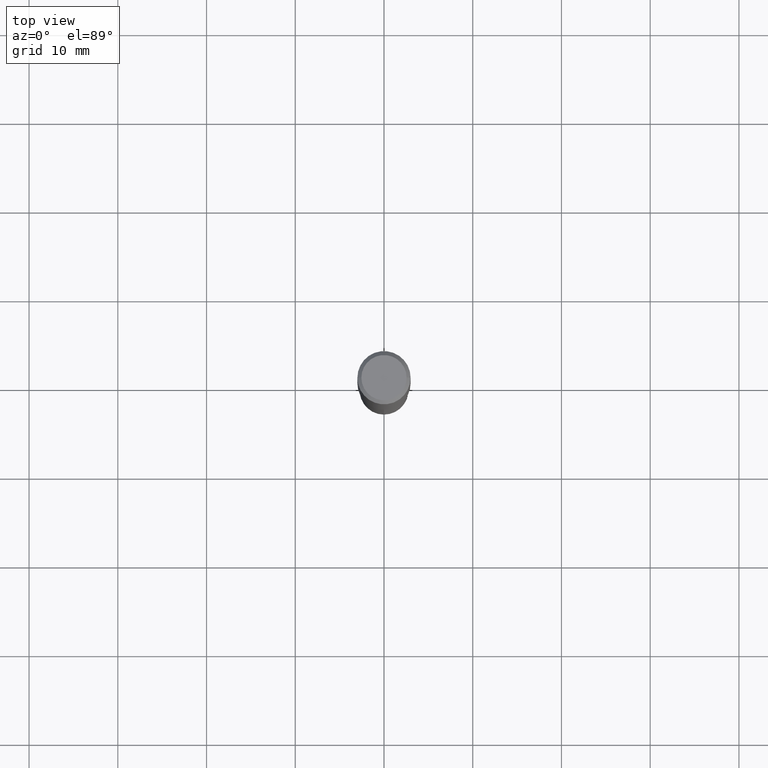
[diagram: clean part render]
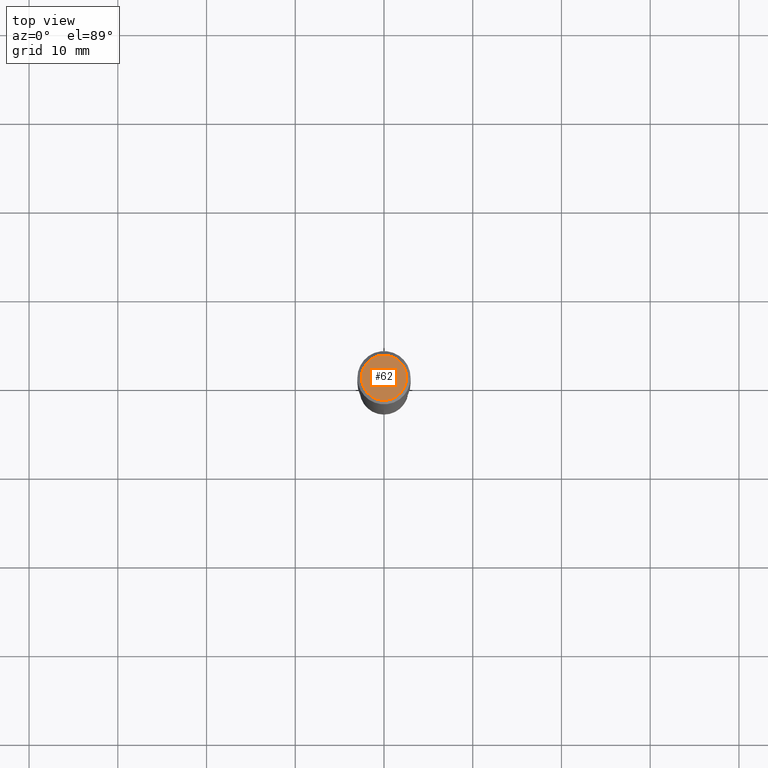
[diagram: same view with one face highlighted and labeled with its STEP entity id]
A machine part, top view. The second image highlights one B-rep face of the part: STEP entity #62.
In plain terms, the highlighted planar face has unit normal (0, -0, -1).
Its self-contained STEP definition (entity closure, byte-faithful):
#50 = DIRECTION ( 'NONE',  ( -1.000000000000000000, 6.982962677686265922E-15, -4.876176775795935793E-29 ) ) ;
#62 = ADVANCED_FACE ( 'NONE', ( #128 ), #157, .F. ) ;
#64 = ORIENTED_EDGE ( 'NONE', *, *, #114, .T. ) ;
#75 = AXIS2_PLACEMENT_3D ( 'NONE', #376, #79, #492 ) ;
#79 = DIRECTION ( 'NONE',  ( -2.445468806185136597E-29, 3.491481338843145583E-15, 1.000000000000000000 ) ) ;
#88 = DIRECTION ( 'NONE',  ( 1.000000000000000000, -6.982962677686266711E-15, 4.875668750515086816E-29 ) ) ;
#105 = EDGE_LOOP ( 'NONE', ( #64, #250 ) ) ;
#114 = EDGE_CURVE ( 'NONE', #395, #219, #437, .T. ) ;
#126 = DIRECTION ( 'NONE',  ( -2.445468806185136597E-29, 3.491481338843145583E-15, 1.000000000000000000 ) ) ;
#128 = FACE_OUTER_BOUND ( 'NONE', #105, .T. ) ;
#145 = AXIS2_PLACEMENT_3D ( 'NONE', #306, #452, #50 ) ;
#157 = PLANE ( 'NONE',  #145 ) ;
#161 = CARTESIAN_POINT ( 'NONE',  ( -0.1003850000000000020, 7.319105043583386689E-16, -1.229361689324571704E-17 ) ) ;
#219 = VERTEX_POINT ( 'NONE', #486 ) ;
#229 = AXIS2_PLACEMENT_3D ( 'NONE', #309, #126, #88 ) ;
#250 = ORIENTED_EDGE ( 'NONE', *, *, #315, .T. ) ;
#306 = CARTESIAN_POINT ( 'NONE',  ( 1.503182831380539065E-46, -2.146146698481838919E-32, -6.146808446620353272E-18 ) ) ;
#309 = CARTESIAN_POINT ( 'NONE',  ( 3.006365662761078129E-46, -4.292293396963677838E-32, -1.229361689324070654E-17 ) ) ;
#315 = EDGE_CURVE ( 'NONE', #219, #395, #489, .T. ) ;
#376 = CARTESIAN_POINT ( 'NONE',  ( 3.006365662761078129E-46, -4.292293396963677838E-32, -1.229361689324070654E-17 ) ) ;
#395 = VERTEX_POINT ( 'NONE', #161 ) ;
#437 = CIRCLE ( 'NONE', #229, 0.1003850000000000020 ) ;
#452 = DIRECTION ( 'NONE',  ( 2.438088387897960049E-29, -3.491481338843145188E-15, -1.000000000000000000 ) ) ;
#486 = CARTESIAN_POINT ( 'NONE',  ( 0.1003850000000000020, -7.803837484803598359E-16, -1.229361689323552810E-17 ) ) ;
#489 = CIRCLE ( 'NONE', #75, 0.1003850000000000020 ) ;
#492 = DIRECTION ( 'NONE',  ( 1.000000000000000000, -6.982962677686266711E-15, 4.875668750515086816E-29 ) ) ;